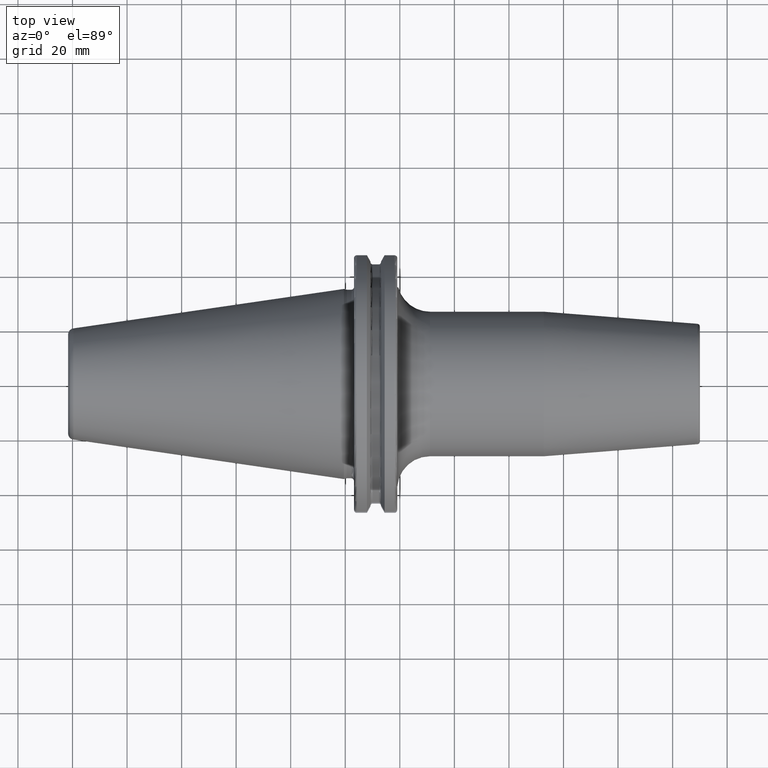
[diagram: clean part render]
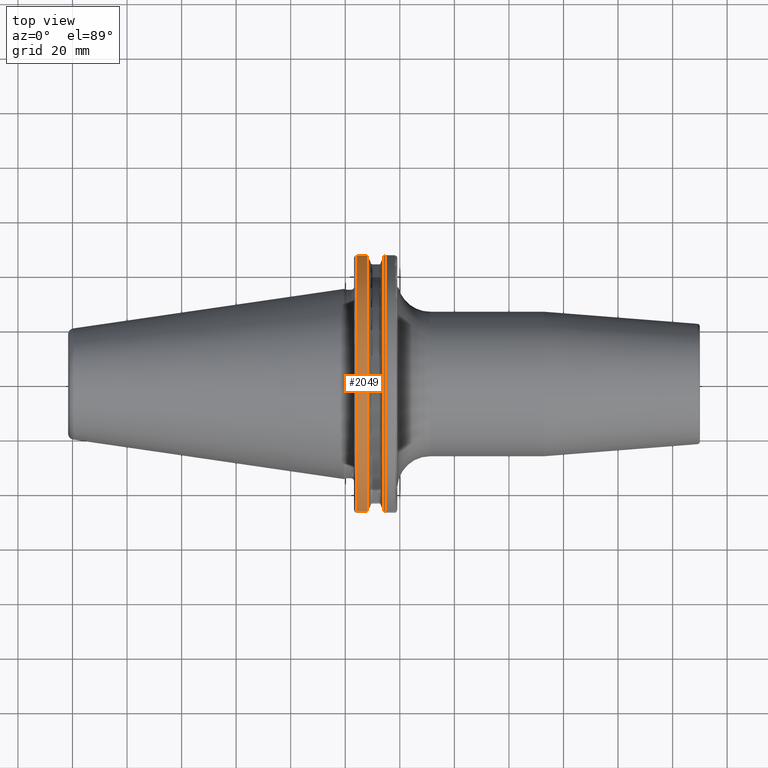
[diagram: same view with one face highlighted and labeled with its STEP entity id]
A machine part, top view. The second image highlights one B-rep face of the part: STEP entity #2049.
In plain terms, the highlighted cylindrical surface (partial cylindrical patch) has radius 48.7375 mm, axis along (1, 0, 0).
Its self-contained STEP definition (entity closure, byte-faithful):
#427=DIRECTION('',(1.E0,0.E0,0.E0));
#428=VECTOR('',#427,3.734621614173E0);
#429=CARTESIAN_POINT('',(4.2E0,4.699929686974E1,1.29E1));
#430=LINE('',#429,#428);
#431=CARTESIAN_POINT('',(7.934621614173E0,0.E0,0.E0));
#432=DIRECTION('',(1.E0,0.E0,0.E0));
#433=DIRECTION('',(0.E0,9.643354064066E-1,2.646832521159E-1));
#434=AXIS2_PLACEMENT_3D('',#431,#432,#433);
#436=DIRECTION('',(1.E0,0.E0,0.E0));
#437=VECTOR('',#436,3.734621614173E0);
#438=CARTESIAN_POINT('',(4.2E0,-4.699929686974E1,1.29E1));
#439=LINE('',#438,#437);
#458=CARTESIAN_POINT('',(7.934621614173E0,4.699929686974E1,1.29E1));
#470=CARTESIAN_POINT('',(7.934621614173E0,-4.699929686974E1,1.29E1));
#483=CARTESIAN_POINT('',(4.2E0,0.E0,0.E0));
#484=DIRECTION('',(1.E0,0.E0,0.E0));
#485=DIRECTION('',(0.E0,9.643354064066E-1,2.646832521159E-1));
#486=AXIS2_PLACEMENT_3D('',#483,#484,#485);
#1362=VERTEX_POINT('',#458);
#1363=VERTEX_POINT('',#470);
#1382=CARTESIAN_POINT('',(4.2E0,4.699929686974E1,1.29E1));
#1383=VERTEX_POINT('',#1382);
#1386=CARTESIAN_POINT('',(4.2E0,-4.699929686974E1,1.29E1));
#1387=VERTEX_POINT('',#1386);
#2036=CARTESIAN_POINT('',(-1.076325E2,0.E0,0.E0));
#2037=DIRECTION('',(1.E0,0.E0,0.E0));
#2038=DIRECTION('',(0.E0,-1.E0,0.E0));
#2039=AXIS2_PLACEMENT_3D('',#2036,#2037,#2038);
#2040=CYLINDRICAL_SURFACE('',#2039,4.87375E1);
#2041=ORIENTED_EDGE('',*,*,#1839,.T.);
#2043=ORIENTED_EDGE('',*,*,#2042,.T.);
#2044=ORIENTED_EDGE('',*,*,#1888,.F.);
#2046=ORIENTED_EDGE('',*,*,#2045,.F.);
#2047=EDGE_LOOP('',(#2041,#2043,#2044,#2046));
#2048=FACE_OUTER_BOUND('',#2047,.F.);
#2049=ADVANCED_FACE('',(#2048),#2040,.T.);
#435=CIRCLE('',#434,4.87375E1);
#487=CIRCLE('',#486,4.87375E1);
#1839=EDGE_CURVE('',#1383,#1362,#430,.T.);
#1888=EDGE_CURVE('',#1387,#1363,#439,.T.);
#2042=EDGE_CURVE('',#1362,#1363,#435,.T.);
#2045=EDGE_CURVE('',#1383,#1387,#487,.T.);